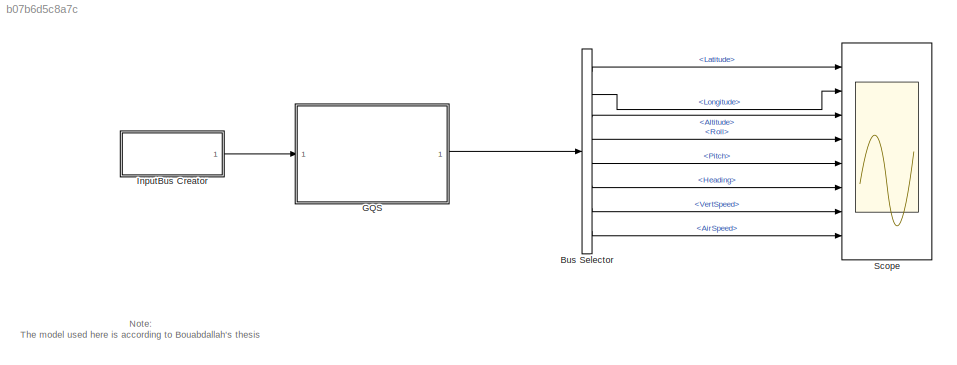
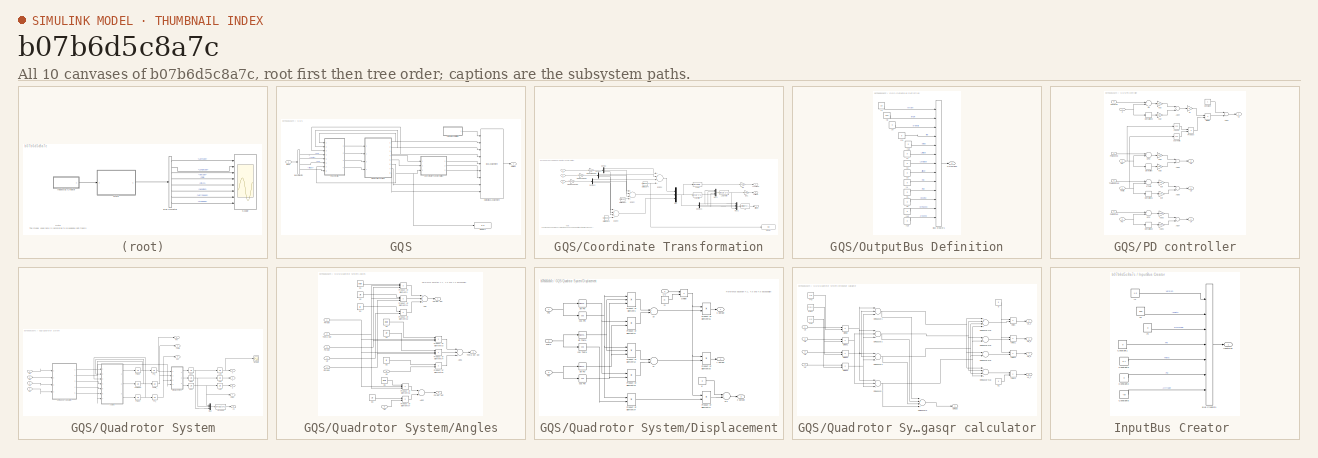
[diagram: thumbnail index - all 10 canvases of the model, root first then tree order]
MODEL slx_b07b6d5c8a7c
KIND model
CONFIG AbsTol = auto
CONFIG EnableMultiTasking = on
CONFIG FixedStep = 0.01
CONFIG MaxStep = auto
CONFIG MinStep = auto
CONFIG RelTol = 1e-3
CONFIG SampleTimeConstraint = Unconstrained
CONFIG Solver = ode4
CONFIG SolverName = ode4
CONFIG StartTime = 0.0
CONFIG StopTime = 50
BLOCK [BusSelector] Bus Selector
  OutputSignals = Latitude,Longitude,Altitude,Roll,Pitch,Heading,VertSpeed,AirSpeed
  Ports = [1, 8]
BLOCK [SubSystem] GQS
  Ports = [1, 1]
  RequestExecContextInheritance = off
  Variant = off
BLOCK [BusSelector] GQS/Bus Selector
  OutputSignals = Phi,Theta,Psi,Altitude
  Ports = [1, 4]
BLOCK [SubSystem] GQS/Coordinate Transformation
  Ports = [3, 3]
  RequestExecContextInheritance = off
  Variant = off
BLOCK [Fcn] GQS/Coordinate Transformation/Alt
  Expr = (sqrt(u[1]^2+u[2]^2)/cos(u[4]))-( a^2 / sqrt( a^2 * cos(u[4])*cos(u[4])+b^2*sin(u[4])*sin(u[4]) ) )
BLOCK [Outport] GQS/Coordinate Transformation/Altitude
  IconDisplay = Port number
  Port = 3
BLOCK [Demux] GQS/Coordinate Transformation/Demux
  DisplayOption = bar
  Outputs = 3
  Ports = [1, 3]
BLOCK [Demux] GQS/Coordinate Transformation/Demux1
  DisplayOption = bar
  Outputs = 3
  Ports = [1, 3]
BLOCK [Demux] GQS/Coordinate Transformation/Demux2
  DisplayOption = bar
  Outputs = 3
  Ports = [1, 3]
BLOCK [Demux] GQS/Coordinate Transformation/Demux3
  DisplayOption = bar
  Outputs = 3
  Ports = [1, 3]
BLOCK [Display] GQS/Coordinate Transformation/Display
  Decimation = 1
  Ports = [1]
BLOCK [Sum] GQS/Coordinate Transformation/ECEFx
  InputSameDT = off
  Inputs = ++++
  OutDataTypeStr = Inherit: Inherit via internal rule
  Ports = [4, 1]
  SaturateOnIntegerOverflow = off
BLOCK [Sum] GQS/Coordinate Transformation/ECEFy
  InputSameDT = off
  Inputs = ++++
  OutDataTypeStr = Inherit: Inherit via internal rule
  Ports = [4, 1]
  SaturateOnIntegerOverflow = off
BLOCK [Sum] GQS/Coordinate Transformation/ECEFz
  InputSameDT = off
  Inputs = ++++
  OutDataTypeStr = Inherit: Inherit via internal rule
  Ports = [4, 1]
  SaturateOnIntegerOverflow = off
BLOCK [Fcn] GQS/Coordinate Transformation/Lat 1st Iter
  Expr = atan2(a^2 * u[3], b^2 * sqrt(u[1]^2 + u[2]^2))
BLOCK [Fcn] GQS/Coordinate Transformation/Lat 2nd Iter
  Expr = atan2(a^2 * sin(u[4])* sin(u[4]),(b^2*sin(u[4])*cos(u[4])+(sqrt(u[1]^2+u[2]^2)*sin(u[4])-u[3]*cos(u[4]))*sqrt(a^2 * cos(u[4])* cos(u[4])+b^2 * sin(u[4])* sin(u[4]))))
BLOCK [Outport] GQS/Coordinate Transformation/Latitude
  IconDisplay = Port number
  Port = 2
BLOCK [Fcn] GQS/Coordinate Transformation/Long
  Expr = atan2(u[2], u[1])
BLOCK [Outport] GQS/Coordinate Transformation/Longitude
  IconDisplay = Port number
BLOCK [Mux] GQS/Coordinate Transformation/Mux
  DisplayOption = bar
  Inputs = 3
  Ports = [3, 1]
BLOCK [Mux] GQS/Coordinate Transformation/Mux1
  DisplayOption = bar
  Ports = [4, 1]
BLOCK [Mux] GQS/Coordinate Transformation/Mux2
  DisplayOption = bar
  Ports = [4, 1]
BLOCK [Gain] GQS/Coordinate Transformation/NEDDownECEF
  Gain = NEDDownECEF
  OutDataTypeStr = Inherit: Inherit via internal rule
  ParamDataTypeStr = Inherit: Inherit via internal rule
  SaturateOnIntegerOverflow = off
BLOCK [Gain] GQS/Coordinate Transformation/NEDEastECEF
  Gain = NEDEastECEF
  OutDataTypeStr = Inherit: Inherit via internal rule
  ParamDataTypeStr = Inherit: Inherit via internal rule
  SaturateOnIntegerOverflow = off
BLOCK [Gain] GQS/Coordinate Transformation/NEDNorthECEF
  Gain = NEDNorthECEF
  OutDataTypeStr = Inherit: Inherit via internal rule
  ParamDataTypeStr = Inherit: Inherit via internal rule
  SaturateOnIntegerOverflow = off
BLOCK [Constant] GQS/Coordinate Transformation/StartECEFX 
  Value = StartECEFX
BLOCK [Constant] GQS/Coordinate Transformation/StartECEFY
  Value = StartECEFY
BLOCK [Constant] GQS/Coordinate Transformation/StartECEFZ
  Value = StartECEFZ
BLOCK [Inport] GQS/Coordinate Transformation/X
  IconDisplay = Port number
BLOCK [Inport] GQS/Coordinate Transformation/Y
  IconDisplay = Port number
  Port = 2
BLOCK [Inport] GQS/Coordinate Transformation/Z
  IconDisplay = Port number
  Port = 3
BLOCK [Gain] GQS/Coordinate Transformation/r2d
  Gain = 180/pi
  OutDataTypeStr = Inherit: Inherit via internal rule
  ParamDataTypeStr = Inherit: Inherit via internal rule
  SaturateOnIntegerOverflow = off
BLOCK [Gain] GQS/Coordinate Transformation/r2d1
  Gain = 180/pi
  OutDataTypeStr = Inherit: Inherit via internal rule
  ParamDataTypeStr = Inherit: Inherit via internal rule
  SaturateOnIntegerOverflow = off
BLOCK [Display] GQS/Display1
  Decimation = 1
  Ports = [1]
BLOCK [Inport] GQS/Input
  IconDisplay = Port number
  OutDataTypeStr = Bus: InputVector
BLOCK [Outport] GQS/Output
  IconDisplay = Port number
  OutDataTypeStr = Bus: OutputVector
BLOCK [BusAssignment] GQS/OutputBus Assignment
  AssignedSignals = Roll,Pitch,Heading,Longitude,Latitude,Altitude,VertSpeed,AirSpeed
  Ports = [9, 1]
BLOCK [SubSystem] GQS/OutputBus Definition
  Ports = [0, 1]
  RequestExecContextInheritance = off
  Variant = off
BLOCK [BusCreator] GQS/OutputBus Definition/Bus Creator1
  DisplayOption = bar
  InheritFromInputs = on
  Inputs = 'version','length','projectId','time','status','Latitude','Longitude','Altitude','Roll','Pitch','Heading','VertSpeed','AirSpeed'
  OutDataTypeStr = Bus: OutputVector
  Ports = [13, 1]
BLOCK [Outport] GQS/OutputBus Definition/OutputBus
  IconDisplay = Port number
  OutDataTypeStr = Bus: OutputVector
BLOCK [Constant] GQS/OutputBus Definition/y1
  OutDataTypeStr = double
  Value = 0
BLOCK [Constant] GQS/OutputBus Definition/y10
  OutDataTypeStr = double
  Value = 0
BLOCK [Constant] GQS/OutputBus Definition/y11
  OutDataTypeStr = double
  Value = 0
BLOCK [Constant] GQS/OutputBus Definition/y12
  OutDataTypeStr = double
  Value = 0
BLOCK [Constant] GQS/OutputBus Definition/y13
  OutDataTypeStr = double
  Value = 0
BLOCK [Constant] GQS/OutputBus Definition/y2
  OutDataTypeStr = double
  Value = 0
BLOCK [Constant] GQS/OutputBus Definition/y3
  OutDataTypeStr = double
  Value = 0
BLOCK [Constant] GQS/OutputBus Definition/y4
  OutDataTypeStr = double
  Value = 0
BLOCK [Constant] GQS/OutputBus Definition/y5
  OutDataTypeStr = double
  Value = 0
BLOCK [Constant] GQS/OutputBus Definition/y6
  OutDataTypeStr = double
  Value = 0
BLOCK [Constant] GQS/OutputBus Definition/y7
  OutDataTypeStr = double
  Value = 1.0
BLOCK [Constant] GQS/OutputBus Definition/y8
  OutDataTypeStr = double
  Value = 555
BLOCK [Constant] GQS/OutputBus Definition/y9
  OutDataTypeStr = double
  Value = 0
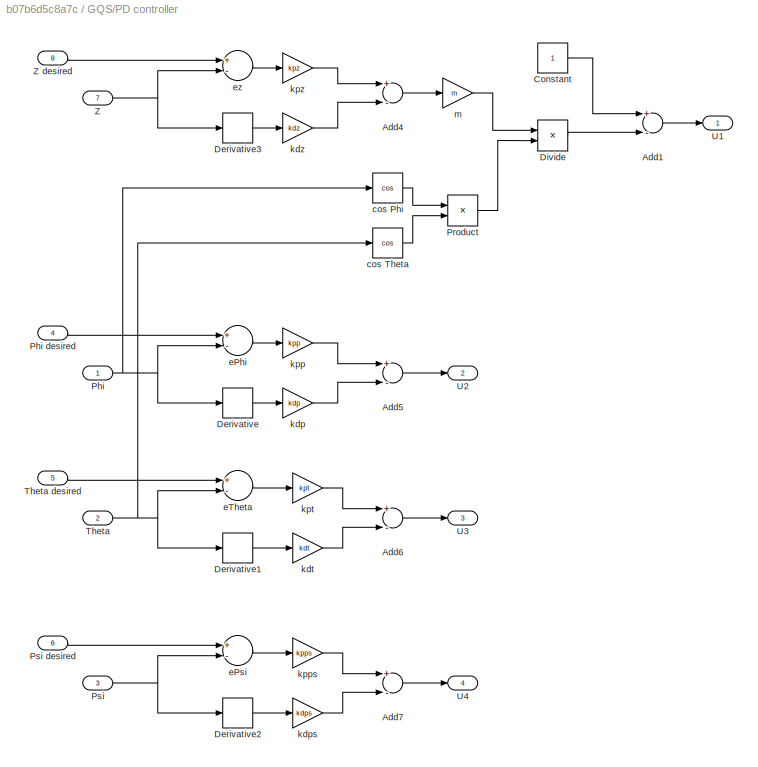
BLOCK [SubSystem] GQS/PD controller
  Ports = [8, 4]
  RequestExecContextInheritance = off
  Variant = off
BLOCK [Sum] GQS/PD controller/Add1
  InputSameDT = off
  Inputs = +-
  OutDataTypeStr = Inherit: Inherit via internal rule
  Ports = [2, 1]
  SaturateOnIntegerOverflow = off
BLOCK [Sum] GQS/PD controller/Add4
  InputSameDT = off
  Inputs = +-
  OutDataTypeStr = Inherit: Inherit via internal rule
  Ports = [2, 1]
  SaturateOnIntegerOverflow = off
BLOCK [Sum] GQS/PD controller/Add5
  InputSameDT = off
  Inputs = +-
  OutDataTypeStr = Inherit: Inherit via internal rule
  Ports = [2, 1]
  SaturateOnIntegerOverflow = off
BLOCK [Sum] GQS/PD controller/Add6
  InputSameDT = off
  Inputs = +-
  OutDataTypeStr = Inherit: Inherit via internal rule
  Ports = [2, 1]
  SaturateOnIntegerOverflow = off
BLOCK [Sum] GQS/PD controller/Add7
  InputSameDT = off
  Inputs = +-
  OutDataTypeStr = Inherit: Inherit via internal rule
  Ports = [2, 1]
  SaturateOnIntegerOverflow = off
BLOCK [Constant] GQS/PD controller/Constant
BLOCK [Derivative] GQS/PD controller/Derivative
BLOCK [Derivative] GQS/PD controller/Derivative1
BLOCK [Derivative] GQS/PD controller/Derivative2
BLOCK [Derivative] GQS/PD controller/Derivative3
BLOCK [Product] GQS/PD controller/Divide
  InputSameDT = off
  Inputs = */
  OutDataTypeStr = Inherit: Inherit via internal rule
  Ports = [2, 1]
  RndMeth = Floor
  SaturateOnIntegerOverflow = off
BLOCK [Inport] GQS/PD controller/Phi
  IconDisplay = Port number
BLOCK [Inport] GQS/PD controller/Phi desired
  IconDisplay = Port number
  Port = 4
BLOCK [Product] GQS/PD controller/Product
  InputSameDT = off
  OutDataTypeStr = Inherit: Inherit via internal rule
  Ports = [2, 1]
  SaturateOnIntegerOverflow = off
BLOCK [Inport] GQS/PD controller/Psi
  IconDisplay = Port number
  Port = 3
BLOCK [Inport] GQS/PD controller/Psi desired
  IconDisplay = Port number
  Port = 6
BLOCK [Inport] GQS/PD controller/Theta
  IconDisplay = Port number
  Port = 2
BLOCK [Inport] GQS/PD controller/Theta desired
  IconDisplay = Port number
  Port = 5
BLOCK [Outport] GQS/PD controller/U1
  IconDisplay = Port number
BLOCK [Outport] GQS/PD controller/U2
  IconDisplay = Port number
  Port = 2
BLOCK [Outport] GQS/PD controller/U3
  IconDisplay = Port number
  Port = 3
BLOCK [Outport] GQS/PD controller/U4
  IconDisplay = Port number
  Port = 4
BLOCK [Inport] GQS/PD controller/Z
  IconDisplay = Port number
  Port = 7
BLOCK [Inport] GQS/PD controller/Z desired
  IconDisplay = Port number
  Port = 8
BLOCK [Trigonometry] GQS/PD controller/cos Phi
  Operator = cos
  Ports = [1, 1]
BLOCK [Trigonometry] GQS/PD controller/cos Theta
  Operator = cos
  Ports = [1, 1]
BLOCK [Sum] GQS/PD controller/ePhi
  InputSameDT = off
  Inputs = +-
  OutDataTypeStr = Inherit: Inherit via internal rule
  Ports = [2, 1]
  SaturateOnIntegerOverflow = off
BLOCK [Sum] GQS/PD controller/ePsi
  InputSameDT = off
  Inputs = +-
  OutDataTypeStr = Inherit: Inherit via internal rule
  Ports = [2, 1]
  SaturateOnIntegerOverflow = off
BLOCK [Sum] GQS/PD controller/eTheta
  InputSameDT = off
  Inputs = +-
  OutDataTypeStr = Inherit: Inherit via internal rule
  Ports = [2, 1]
  SaturateOnIntegerOverflow = off
BLOCK [Sum] GQS/PD controller/ez
  InputSameDT = off
  Inputs = +-
  OutDataTypeStr = Inherit: Inherit via internal rule
  Ports = [2, 1]
  SaturateOnIntegerOverflow = off
BLOCK [Gain] GQS/PD controller/kdp
  Gain = kdp
  OutDataTypeStr = Inherit: Inherit via internal rule
  ParamDataTypeStr = Inherit: Inherit via internal rule
  SaturateOnIntegerOverflow = off
BLOCK [Gain] GQS/PD controller/kdps
  Gain = kdps
  OutDataTypeStr = Inherit: Inherit via internal rule
  ParamDataTypeStr = Inherit: Inherit via internal rule
  SaturateOnIntegerOverflow = off
BLOCK [Gain] GQS/PD controller/kdt
  Gain = kdt
  OutDataTypeStr = Inherit: Inherit via internal rule
  ParamDataTypeStr = Inherit: Inherit via internal rule
  SaturateOnIntegerOverflow = off
BLOCK [Gain] GQS/PD controller/kdz
  Gain = kdz
  OutDataTypeStr = Inherit: Inherit via internal rule
  ParamDataTypeStr = Inherit: Inherit via internal rule
  SaturateOnIntegerOverflow = off
BLOCK [Gain] GQS/PD controller/kpp
  Gain = kpp
  OutDataTypeStr = Inherit: Inherit via internal rule
  ParamDataTypeStr = Inherit: Inherit via internal rule
  SaturateOnIntegerOverflow = off
BLOCK [Gain] GQS/PD controller/kpps
  Gain = kpps
  OutDataTypeStr = Inherit: Inherit via internal rule
  ParamDataTypeStr = Inherit: Inherit via internal rule
  SaturateOnIntegerOverflow = off
BLOCK [Gain] GQS/PD controller/kpt
  Gain = kpt
  OutDataTypeStr = Inherit: Inherit via internal rule
  ParamDataTypeStr = Inherit: Inherit via internal rule
  SaturateOnIntegerOverflow = off
BLOCK [Gain] GQS/PD controller/kpz
  Gain = kpz
  OutDataTypeStr = Inherit: Inherit via internal rule
  ParamDataTypeStr = Inherit: Inherit via internal rule
  SaturateOnIntegerOverflow = off
BLOCK [Gain] GQS/PD controller/m
  Gain = m
  OutDataTypeStr = Inherit: Inherit via internal rule
  ParamDataTypeStr = Inherit: Inherit via internal rule
  SaturateOnIntegerOverflow = off
BLOCK [SubSystem] GQS/Quadrotor System
  Ports = [4, 8]
  RequestExecContextInheritance = off
  Variant = off
BLOCK [Outport] GQS/Quadrotor System/AS
  IconDisplay = Port number
  Port = 8
BLOCK [Integrator] GQS/Quadrotor System/Act X
  Ports = [1, 1]
BLOCK [Integrator] GQS/Quadrotor System/Act Y
  Ports = [1, 1]
BLOCK [Integrator] GQS/Quadrotor System/Act Z
  Ports = [1, 1]
BLOCK [Fcn] GQS/Quadrotor System/Airspeed
  Expr = sqrt(u[1]^2+u[2]^2+u[3]^2)
BLOCK [SubSystem] GQS/Quadrotor System/Angles
  Ports = [7, 3]
  RequestExecContextInheritance = off
  Variant = off
BLOCK [Sum] GQS/Quadrotor System/Angles/Add
  InputSameDT = off
  Inputs = +++
  OutDataTypeStr = Inherit: Inherit via internal rule
  Ports = [3, 1]
  SaturateOnIntegerOverflow = off
BLOCK [Sum] GQS/Quadrotor System/Angles/Add1
  InputSameDT = off
  Inputs = +-+
  OutDataTypeStr = Inherit: Inherit via internal rule
  Ports = [3, 1]
  SaturateOnIntegerOverflow = off
BLOCK [Sum] GQS/Quadrotor System/Angles/Add2
  InputSameDT = off
  OutDataTypeStr = Inherit: Inherit via internal rule
  Ports = [2, 1]
  SaturateOnIntegerOverflow = off
BLOCK [Inport] GQS/Quadrotor System/Angles/Omega
  IconDisplay = Port number
  Port = 7
BLOCK [Inport] GQS/Quadrotor System/Angles/Phi dot
  IconDisplay = Port number
BLOCK [Outport] GQS/Quadrotor System/Angles/Phi dot dot
  IconDisplay = Port number
BLOCK [Product] GQS/Quadrotor System/Angles/Product of Elements
  InputSameDT = off
  Inputs = 3
  OutDataTypeStr = Inherit: Inherit via internal rule
  Ports = [3, 1]
  RndMeth = Floor
  SaturateOnIntegerOverflow = off
BLOCK [Product] GQS/Quadrotor System/Angles/Product of Elements1
  InputSameDT = off
  Inputs = 3
  OutDataTypeStr = Inherit: Inherit via internal rule
  Ports = [3, 1]
  RndMeth = Floor
  SaturateOnIntegerOverflow = off
BLOCK [Product] GQS/Quadrotor System/Angles/Product of Elements2
  InputSameDT = off
  OutDataTypeStr = Inherit: Inherit via internal rule
  Ports = [2, 1]
  RndMeth = Floor
  SaturateOnIntegerOverflow = off
BLOCK [Product] GQS/Quadrotor System/Angles/Product of Elements3
  InputSameDT = off
  Inputs = 3
  OutDataTypeStr = Inherit: Inherit via internal rule
  Ports = [3, 1]
  RndMeth = Floor
  SaturateOnIntegerOverflow = off
BLOCK [Product] GQS/Quadrotor System/Angles/Product of Elements4
  InputSameDT = off
  Inputs = 3
  OutDataTypeStr = Inherit: Inherit via internal rule
  Ports = [3, 1]
  RndMeth = Floor
  SaturateOnIntegerOverflow = off
BLOCK [Product] GQS/Quadrotor System/Angles/Product of Elements5
  InputSameDT = off
  OutDataTypeStr = Inherit: Inherit via internal rule
  Ports = [2, 1]
  RndMeth = Floor
  SaturateOnIntegerOverflow = off
BLOCK [Product] GQS/Quadrotor System/Angles/Product of Elements6
  InputSameDT = off
  Inputs = 3
  OutDataTypeStr = Inherit: Inherit via internal rule
  Ports = [3, 1]
  RndMeth = Floor
  SaturateOnIntegerOverflow = off
BLOCK [Product] GQS/Quadrotor System/Angles/Product of Elements7
  InputSameDT = off
  OutDataTypeStr = Inherit: Inherit via internal rule
  Ports = [2, 1]
  RndMeth = Floor
  SaturateOnIntegerOverflow = off
BLOCK [Inport] GQS/Quadrotor System/Angles/Psi dot
  IconDisplay = Port number
  Port = 3
BLOCK [Outport] GQS/Quadrotor System/Angles/Psi dot dot
  IconDisplay = Port number
  Port = 3
BLOCK [Inport] GQS/Quadrotor System/Angles/Theta dot
  IconDisplay = Port number
  Port = 2
BLOCK [Outport] GQS/Quadrotor System/Angles/Theta dot dot
  IconDisplay = Port number
  Port = 2
BLOCK [Inport] GQS/Quadrotor System/Angles/U2
  IconDisplay = Port number
  Port = 4
BLOCK [Inport] GQS/Quadrotor System/Angles/U3
  IconDisplay = Port number
  Port = 5
BLOCK [Inport] GQS/Quadrotor System/Angles/U4
  IconDisplay = Port number
  Port = 6
BLOCK [Constant] GQS/Quadrotor System/Angles/a1
  Value = (Iy - Iz)/Ix
BLOCK [Constant] GQS/Quadrotor System/Angles/a2
  Value = Jr/Ix
BLOCK [Constant] GQS/Quadrotor System/Angles/a3
  Value = (Iz - Ix)/Iy
BLOCK [Constant] GQS/Quadrotor System/Angles/a4
  Value = Jr/Iy
BLOCK [Constant] GQS/Quadrotor System/Angles/a5
  Value = (Ix - Iy)/Iz
BLOCK [Constant] GQS/Quadrotor System/Angles/b1
  Value = l/Ix
BLOCK [Constant] GQS/Quadrotor System/Angles/b2
  Value = l/Iy
BLOCK [Constant] GQS/Quadrotor System/Angles/b3
  Value = 1/Iz
BLOCK [SubSystem] GQS/Quadrotor System/Displacement
  Ports = [4, 3]
  RequestExecContextInheritance = off
  Variant = off
BLOCK [Product] GQS/Quadrotor System/Displacement/Divide
  InputSameDT = off
  Inputs = */
  OutDataTypeStr = Inherit: Inherit via internal rule
  Ports = [2, 1]
  RndMeth = Floor
  SaturateOnIntegerOverflow = off
BLOCK [Inport] GQS/Quadrotor System/Displacement/Phi
  IconDisplay = Port number
BLOCK [Product] GQS/Quadrotor System/Displacement/Product of Elements
  InputSameDT = off
  Inputs = 3
  OutDataTypeStr = Inherit: Inherit via internal rule
  Ports = [3, 1]
  RndMeth = Floor
  SaturateOnIntegerOverflow = off
BLOCK [Product] GQS/Quadrotor System/Displacement/Product of Elements1
  InputSameDT = off
  OutDataTypeStr = Inherit: Inherit via internal rule
  Ports = [2, 1]
  RndMeth = Floor
  SaturateOnIntegerOverflow = off
BLOCK [Product] GQS/Quadrotor System/Displacement/Product of Elements2
  InputSameDT = off
  Inputs = 3
  OutDataTypeStr = Inherit: Inherit via internal rule
  Ports = [3, 1]
  RndMeth = Floor
  SaturateOnIntegerOverflow = off
BLOCK [Product] GQS/Quadrotor System/Displacement/Product of Elements3
  InputSameDT = off
  OutDataTypeStr = Inherit: Inherit via internal rule
  Ports = [2, 1]
  RndMeth = Floor
  SaturateOnIntegerOverflow = off
BLOCK [Product] GQS/Quadrotor System/Displacement/Product of Elements4
  InputSameDT = off
  OutDataTypeStr = Inherit: Inherit via internal rule
  Ports = [2, 1]
  RndMeth = Floor
  SaturateOnIntegerOverflow = off
BLOCK [Product] GQS/Quadrotor System/Displacement/Product of Elements5
  InputSameDT = off
  OutDataTypeStr = Inherit: Inherit via internal rule
  Ports = [2, 1]
  RndMeth = Floor
  SaturateOnIntegerOverflow = off
BLOCK [Product] GQS/Quadrotor System/Displacement/Product of Elements6
  InputSameDT = off
  OutDataTypeStr = Inherit: Inherit via internal rule
  Ports = [2, 1]
  RndMeth = Floor
  SaturateOnIntegerOverflow = off
BLOCK [Product] GQS/Quadrotor System/Displacement/Product of Elements7
  InputSameDT = off
  OutDataTypeStr = Inherit: Inherit via internal rule
  Ports = [2, 1]
  RndMeth = Floor
  SaturateOnIntegerOverflow = off
BLOCK [Inport] GQS/Quadrotor System/Displacement/Psi
  IconDisplay = Port number
  Port = 3
BLOCK [Inport] GQS/Quadrotor System/Displacement/Theta
  IconDisplay = Port number
  Port = 2
BLOCK [Inport] GQS/Quadrotor System/Displacement/U1
  IconDisplay = Port number
  Port = 4
BLOCK [Trigonometry] GQS/Quadrotor System/Displacement/cos Phi
  Operator = cos
  Ports = [1, 1]
BLOCK [Trigonometry] GQS/Quadrotor System/Displacement/cos Psi
  Operator = cos
  Ports = [1, 1]
BLOCK [Trigonometry] GQS/Quadrotor System/Displacement/cos Theta
  Operator = cos
  Ports = [1, 1]
BLOCK [Constant] GQS/Quadrotor System/Displacement/g
  Value = g
BLOCK [Constant] GQS/Quadrotor System/Displacement/m
  Value = m
BLOCK [Trigonometry] GQS/Quadrotor System/Displacement/sin Phi
  Ports = [1, 1]
BLOCK [Trigonometry] GQS/Quadrotor System/Displacement/sin Psi
  Ports = [1, 1]
BLOCK [Trigonometry] GQS/Quadrotor System/Displacement/sin Theta
  Ports = [1, 1]
BLOCK [Sum] GQS/Quadrotor System/Displacement/ux
  InputSameDT = off
  OutDataTypeStr = Inherit: Inherit via internal rule
  Ports = [2, 1]
  SaturateOnIntegerOverflow = off
BLOCK [Sum] GQS/Quadrotor System/Displacement/uy
  InputSameDT = off
  Inputs = +-
  OutDataTypeStr = Inherit: Inherit via internal rule
  Ports = [2, 1]
  SaturateOnIntegerOverflow = off
BLOCK [Sum] GQS/Quadrotor System/Displacement/uy1
  InputSameDT = off
  Inputs = +-
  OutDataTypeStr = Inherit: Inherit via internal rule
  Ports = [2, 1]
  SaturateOnIntegerOverflow = off
BLOCK [Outport] GQS/Quadrotor System/Displacement/x dotdot
  IconDisplay = Port number
BLOCK [Outport] GQS/Quadrotor System/Displacement/y dotdot
  IconDisplay = Port number
  Port = 2
BLOCK [Outport] GQS/Quadrotor System/Displacement/z dotdot
  IconDisplay = Port number
  Port = 3
BLOCK [Mux] GQS/Quadrotor System/Mux
  DisplayOption = bar
  Inputs = 3
  Ports = [3, 1]
BLOCK [Outport] GQS/Quadrotor System/Phi
  IconDisplay = Port number
BLOCK [Integrator] GQS/Quadrotor System/Phi dot
  Ports = [1, 1]
BLOCK [Integrator] GQS/Quadrotor System/Phi_ 
  Ports = [1, 1]
  ZeroCross = off
BLOCK [Outport] GQS/Quadrotor System/Psi
  IconDisplay = Port number
  Port = 3
BLOCK [Integrator] GQS/Quadrotor System/Psi dot
  Ports = [1, 1]
  ZeroCross = off
BLOCK [Integrator] GQS/Quadrotor System/Psi_
  Ports = [1, 1]
  ZeroCross = off
BLOCK [Scope] GQS/Quadrotor System/Scope
  NumInputPorts = 1
  Ports = [1]
  ScopeSpecificationString = C++SS(StrPVP('Location','[1, 48, 1921, 1169]'),StrPVP('Open','off'),MxPVP('AxesTitles',24,'struct(''axes1'',''%<SignalLabel>'')'),MxPVP('ScopeGraphics',28,'struct(''FigureColor'',''[0.5 0.5 0.5]'',''AxesColor'',''[0 0 0]'',''AxesTickColor'',''[1 1 1]'',''LineColors'',''[1 1 0;1 0 1;0 1 1;1 0 0;0 1 0;0 0 1]'',''LineStyles'',''-|-|-|-|-|-'',''LineWidths'',''[0.5 0.5 0.5 0.5 0.5 0.5]'',''MarkerStyles...<+270ch>
BLOCK [Outport] GQS/Quadrotor System/Theta
  IconDisplay = Port number
  Port = 2
BLOCK [Integrator] GQS/Quadrotor System/Theta dot
  Ports = [1, 1]
  ZeroCross = off
BLOCK [Integrator] GQS/Quadrotor System/Theta_
  Ports = [1, 1]
  ZeroCross = off
BLOCK [Inport] GQS/Quadrotor System/U1
  IconDisplay = Port number
BLOCK [Inport] GQS/Quadrotor System/U2
  IconDisplay = Port number
  Port = 2
BLOCK [Inport] GQS/Quadrotor System/U3
  IconDisplay = Port number
  Port = 3
BLOCK [Inport] GQS/Quadrotor System/U4
  IconDisplay = Port number
  Port = 4
BLOCK [Outport] GQS/Quadrotor System/X
  IconDisplay = Port number
  Port = 4
BLOCK [Integrator] GQS/Quadrotor System/X dot
  Ports = [1, 1]
BLOCK [Outport] GQS/Quadrotor System/Y
  IconDisplay = Port number
  Port = 5
BLOCK [Integrator] GQS/Quadrotor System/Y dot
  Ports = [1, 1]
BLOCK [Outport] GQS/Quadrotor System/Z
  IconDisplay = Port number
  Port = 6
BLOCK [Integrator] GQS/Quadrotor System/Z dot
  Ports = [1, 1]
BLOCK [Outport] GQS/Quadrotor System/ZDot
  IconDisplay = Port number
  Port = 7
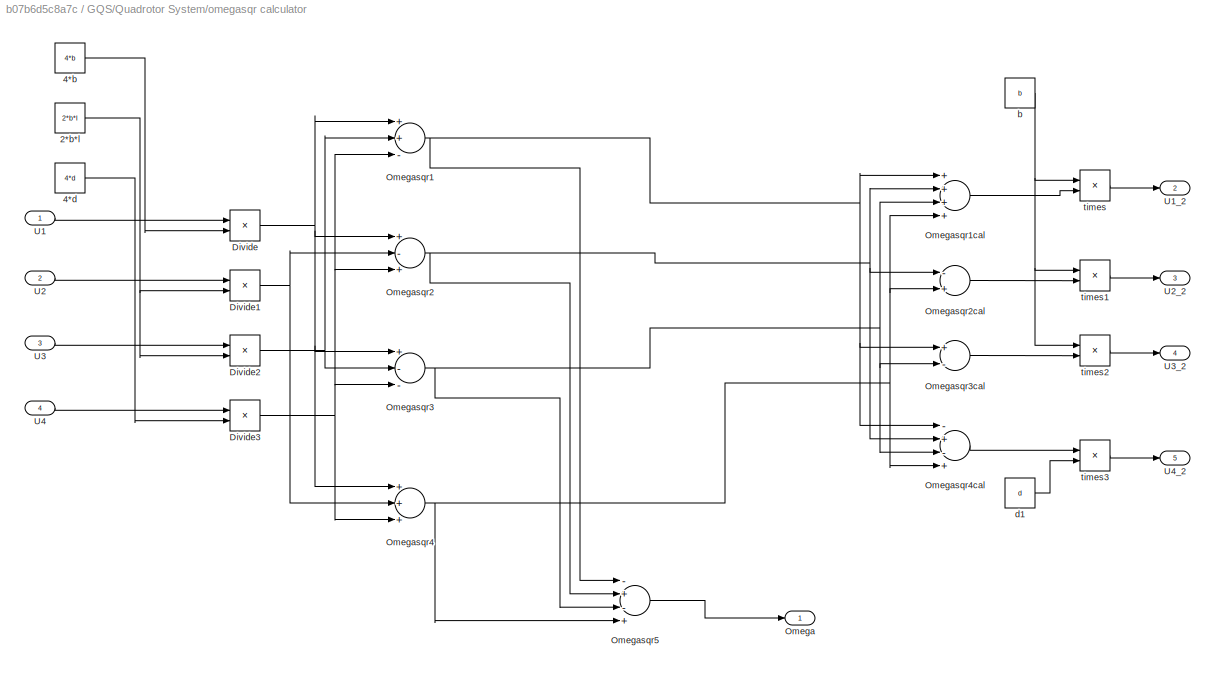
BLOCK [SubSystem] GQS/Quadrotor System/omegasqr calculator
  Ports = [4, 5]
  RequestExecContextInheritance = off
  Variant = off
BLOCK [Constant] GQS/Quadrotor System/omegasqr calculator/2*b*l
  Value = 2*b*l
BLOCK [Constant] GQS/Quadrotor System/omegasqr calculator/4*b
  Value = 4*b
BLOCK [Constant] GQS/Quadrotor System/omegasqr calculator/4*d
  Value = 4*d
BLOCK [Product] GQS/Quadrotor System/omegasqr calculator/Divide
  InputSameDT = off
  Inputs = */
  OutDataTypeStr = Inherit: Inherit via internal rule
  Ports = [2, 1]
  RndMeth = Floor
  SaturateOnIntegerOverflow = off
BLOCK [Product] GQS/Quadrotor System/omegasqr calculator/Divide1
  InputSameDT = off
  Inputs = */
  OutDataTypeStr = Inherit: Inherit via internal rule
  Ports = [2, 1]
  RndMeth = Floor
  SaturateOnIntegerOverflow = off
BLOCK [Product] GQS/Quadrotor System/omegasqr calculator/Divide2
  InputSameDT = off
  Inputs = */
  OutDataTypeStr = Inherit: Inherit via internal rule
  Ports = [2, 1]
  RndMeth = Floor
  SaturateOnIntegerOverflow = off
BLOCK [Product] GQS/Quadrotor System/omegasqr calculator/Divide3
  InputSameDT = off
  Inputs = */
  OutDataTypeStr = Inherit: Inherit via internal rule
  Ports = [2, 1]
  RndMeth = Floor
  SaturateOnIntegerOverflow = off
BLOCK [Outport] GQS/Quadrotor System/omegasqr calculator/Omega
  IconDisplay = Port number
BLOCK [Sum] GQS/Quadrotor System/omegasqr calculator/Omegasqr1
  InputSameDT = off
  Inputs = ++-
  OutDataTypeStr = Inherit: Inherit via internal rule
  Ports = [3, 1]
  SaturateOnIntegerOverflow = off
BLOCK [Sum] GQS/Quadrotor System/omegasqr calculator/Omegasqr1cal
  InputSameDT = off
  Inputs = ++++
  OutDataTypeStr = Inherit: Inherit via internal rule
  Ports = [4, 1]
  SaturateOnIntegerOverflow = off
BLOCK [Sum] GQS/Quadrotor System/omegasqr calculator/Omegasqr2
  InputSameDT = off
  Inputs = +-+
  OutDataTypeStr = Inherit: Inherit via internal rule
  Ports = [3, 1]
  SaturateOnIntegerOverflow = off
BLOCK [Sum] GQS/Quadrotor System/omegasqr calculator/Omegasqr2cal
  InputSameDT = off
  Inputs = -+
  OutDataTypeStr = Inherit: Inherit via internal rule
  Ports = [2, 1]
  SaturateOnIntegerOverflow = off
BLOCK [Sum] GQS/Quadrotor System/omegasqr calculator/Omegasqr3
  InputSameDT = off
  Inputs = +--
  OutDataTypeStr = Inherit: Inherit via internal rule
  Ports = [3, 1]
  SaturateOnIntegerOverflow = off
BLOCK [Sum] GQS/Quadrotor System/omegasqr calculator/Omegasqr3cal
  InputSameDT = off
  Inputs = +-
  OutDataTypeStr = Inherit: Inherit via internal rule
  Ports = [2, 1]
  SaturateOnIntegerOverflow = off
BLOCK [Sum] GQS/Quadrotor System/omegasqr calculator/Omegasqr4
  InputSameDT = off
  Inputs = +++
  OutDataTypeStr = Inherit: Inherit via internal rule
  Ports = [3, 1]
  SaturateOnIntegerOverflow = off
BLOCK [Sum] GQS/Quadrotor System/omegasqr calculator/Omegasqr4cal
  InputSameDT = off
  Inputs = -+-+
  OutDataTypeStr = Inherit: Inherit via internal rule
  Ports = [4, 1]
  SaturateOnIntegerOverflow = off
BLOCK [Sum] GQS/Quadrotor System/omegasqr calculator/Omegasqr5
  InputSameDT = off
  Inputs = -+-+
  OutDataTypeStr = Inherit: Inherit via internal rule
  Ports = [4, 1]
  SaturateOnIntegerOverflow = off
BLOCK [Inport] GQS/Quadrotor System/omegasqr calculator/U1
  IconDisplay = Port number
BLOCK [Outport] GQS/Quadrotor System/omegasqr calculator/U1_2
  IconDisplay = Port number
  Port = 2
BLOCK [Inport] GQS/Quadrotor System/omegasqr calculator/U2
  IconDisplay = Port number
  Port = 2
BLOCK [Outport] GQS/Quadrotor System/omegasqr calculator/U2_2
  IconDisplay = Port number
  Port = 3
BLOCK [Inport] GQS/Quadrotor System/omegasqr calculator/U3
  IconDisplay = Port number
  Port = 3
BLOCK [Outport] GQS/Quadrotor System/omegasqr calculator/U3_2
  IconDisplay = Port number
  Port = 4
BLOCK [Inport] GQS/Quadrotor System/omegasqr calculator/U4
  IconDisplay = Port number
  Port = 4
BLOCK [Outport] GQS/Quadrotor System/omegasqr calculator/U4_2
  IconDisplay = Port number
  Port = 5
BLOCK [Constant] GQS/Quadrotor System/omegasqr calculator/b
  Value = b
BLOCK [Constant] GQS/Quadrotor System/omegasqr calculator/d1
  Value = d
BLOCK [Product] GQS/Quadrotor System/omegasqr calculator/times
  InputSameDT = off
  Inputs = **
  OutDataTypeStr = Inherit: Inherit via internal rule
  Ports = [2, 1]
  RndMeth = Floor
  SaturateOnIntegerOverflow = off
BLOCK [Product] GQS/Quadrotor System/omegasqr calculator/times1
  InputSameDT = off
  Inputs = **
  OutDataTypeStr = Inherit: Inherit via internal rule
  Ports = [2, 1]
  RndMeth = Floor
  SaturateOnIntegerOverflow = off
BLOCK [Product] GQS/Quadrotor System/omegasqr calculator/times2
  InputSameDT = off
  Inputs = **
  OutDataTypeStr = Inherit: Inherit via internal rule
  Ports = [2, 1]
  RndMeth = Floor
  SaturateOnIntegerOverflow = off
BLOCK [Product] GQS/Quadrotor System/omegasqr calculator/times3
  InputSameDT = off
  Inputs = **
  OutDataTypeStr = Inherit: Inherit via internal rule
  Ports = [2, 1]
  RndMeth = Floor
  SaturateOnIntegerOverflow = off
BLOCK [SubSystem] InputBus Creator 
  Ports = [0, 1]
  RequestExecContextInheritance = off
  Variant = off
BLOCK [BusCreator] InputBus Creator /Bus Creator1
  DisplayOption = bar
  InheritFromInputs = on
  Inputs = 'version','length','simMode','Phi','Theta','Psi','Altitude'
  OutDataTypeStr = Bus: InputVector
  Ports = [7, 1]
BLOCK [Constant] InputBus Creator /Constant1
  Value = 0
BLOCK [Constant] InputBus Creator /Constant2
  Value = 0
BLOCK [Constant] InputBus Creator /Constant3
  Value = 0.1
BLOCK [Constant] InputBus Creator /Constant5
  Value = -50
BLOCK [Outport] InputBus Creator /InputBus
  IconDisplay = Port number
  OutDataTypeStr = Bus: InputVector
BLOCK [Constant] InputBus Creator /y7
  OutDataTypeStr = double
  Value = 1.0
BLOCK [Constant] InputBus Creator /y8
  OutDataTypeStr = double
  Value = 555
BLOCK [Constant] InputBus Creator /y9
  OutDataTypeStr = double
  Value = 0
BLOCK [Scope] Scope
  NumInputPorts = 8
  Ports = [8]
  ScopeSpecificationString = C++SS(StrPVP('Location','[2487, 307, 3031, 1367]'),StrPVP('Open','off'),MxPVP('AxesTitles',24,'struct(''axes1'',''%<SignalLabel>'',''axes2'',''%<SignalLabel>'',''axes3'',''%<SignalLabel>'',''axes4'',''%<SignalLabel>'',''axes5'',''%<SignalLabel>'',''axes6'',''%<SignalLabel>'',''axes7'',''%<SignalLabel>'',''axes8'',''%<SignalLabel>'')'),MxPVP('ScopeGraphics',28,'struct(''FigureColor'',''[0.5 0.5 0.5...<+546ch>
ANNOTATION (root): Note: The model used here is according to Bouabdallah's thesis
ANNOTATION GQS/Coordinate Transformation: Note: The model used here is according to Don Koks' Using Rotations to Build Aerospace Coordinate Systems
ANNOTATION GQS/Quadrotor System/Angles: Reference Equation 4.1, 4.5 and 4.6 Bouabdallah
ANNOTATION GQS/Quadrotor System/Displacement: Reference Equation 4.1, 4.5 and 4.6 Bouabdallah
LINE Bus Selector:1 -> Scope:1
LINE Bus Selector:2 -> Scope:2
LINE Bus Selector:3 -> Scope:3
LINE Bus Selector:4 -> Scope:4
LINE Bus Selector:5 -> Scope:5
LINE Bus Selector:6 -> Scope:6
LINE Bus Selector:7 -> Scope:7
LINE Bus Selector:8 -> Scope:8
LINE GQS/Bus Selector:1 -> GQS/PD controller:4
LINE GQS/Bus Selector:2 -> GQS/PD controller:5
LINE GQS/Bus Selector:3 -> GQS/PD controller:6
LINE GQS/Bus Selector:4 -> GQS/PD controller:8
LINE GQS/Coordinate Transformation/Alt:1 -> GQS/Coordinate Transformation/Altitude:1
LINE GQS/Coordinate Transformation/Demux1:1 -> GQS/Coordinate Transformation/ECEFx:2
LINE GQS/Coordinate Transformation/Demux1:2 -> GQS/Coordinate Transformation/ECEFy:3
LINE GQS/Coordinate Transformation/Demux1:3 -> GQS/Coordinate Transformation/ECEFz:2
LINE GQS/Coordinate Transformation/Demux2:1 -> GQS/Coordinate Transformation/ECEFx:3
LINE GQS/Coordinate Transformation/Demux2:2 -> GQS/Coordinate Transformation/ECEFy:2
LINE GQS/Coordinate Transformation/Demux2:3 -> GQS/Coordinate Transformation/ECEFz:3
NET GQS/Coordinate Transformation/Demux3:1 -> GQS/Coordinate Transformation/Mux1:1, GQS/Coordinate Transformation/Mux2:1
NET GQS/Coordinate Transformation/Demux3:2 -> GQS/Coordinate Transformation/Mux1:2, GQS/Coordinate Transformation/Mux2:2
NET GQS/Coordinate Transformation/Demux3:3 -> GQS/Coordinate Transformation/Mux1:3, GQS/Coordinate Transformation/Mux2:3
LINE GQS/Coordinate Transformation/Demux:1 -> GQS/Coordinate Transformation/ECEFx:1
LINE GQS/Coordinate Transformation/Demux:2 -> GQS/Coordinate Transformation/ECEFy:1
LINE GQS/Coordinate Transformation/Demux:3 -> GQS/Coordinate Transformation/ECEFz:1
LINE GQS/Coordinate Transformation/ECEFx:1 -> GQS/Coordinate Transformation/Mux:1
LINE GQS/Coordinate Transformation/ECEFy:1 -> GQS/Coordinate Transformation/Mux:2
LINE GQS/Coordinate Transformation/ECEFz:1 -> GQS/Coordinate Transformation/Mux:3
LINE GQS/Coordinate Transformation/Lat 1st Iter:1 -> GQS/Coordinate Transformation/Mux1:4
NET GQS/Coordinate Transformation/Lat 2nd Iter:1 -> GQS/Coordinate Transformation/Mux2:4, GQS/Coordinate Transformation/r2d1:1
LINE GQS/Coordinate Transformation/Long:1 -> GQS/Coordinate Transformation/r2d:1
LINE GQS/Coordinate Transformation/Mux1:1 -> GQS/Coordinate Transformation/Lat 2nd Iter:1
LINE GQS/Coordinate Transformation/Mux2:1 -> GQS/Coordinate Transformation/Alt:1
NET GQS/Coordinate Transformation/Mux:1 -> GQS/Coordinate Transformation/Demux3:1, GQS/Coordinate Transformation/Lat 1st Iter:1, GQS/Coordinate Transformation/Long:1
LINE GQS/Coordinate Transformation/NEDDownECEF:1 -> GQS/Coordinate Transformation/Demux2:1
LINE GQS/Coordinate Transformation/NEDEastECEF:1 -> GQS/Coordinate Transformation/Demux1:1
LINE GQS/Coordinate Transformation/NEDNorthECEF:1 -> GQS/Coordinate Transformation/Demux:1
NET GQS/Coordinate Transformation/StartECEFX :1 -> GQS/Coordinate Transformation/Display:1, GQS/Coordinate Transformation/ECEFx:4
LINE GQS/Coordinate Transformation/StartECEFY:1 -> GQS/Coordinate Transformation/ECEFy:4
LINE GQS/Coordinate Transformation/StartECEFZ:1 -> GQS/Coordinate Transformation/ECEFz:4
LINE GQS/Coordinate Transformation/X:1 -> GQS/Coordinate Transformation/NEDNorthECEF:1
LINE GQS/Coordinate Transformation/Y:1 -> GQS/Coordinate Transformation/NEDEastECEF:1
LINE GQS/Coordinate Transformation/Z:1 -> GQS/Coordinate Transformation/NEDDownECEF:1
LINE GQS/Coordinate Transformation/r2d1:1 -> GQS/Coordinate Transformation/Latitude:1
LINE GQS/Coordinate Transformation/r2d:1 -> GQS/Coordinate Transformation/Longitude:1
LINE GQS/Coordinate Transformation:1 -> GQS/OutputBus Assignment:5
LINE GQS/Coordinate Transformation:2 -> GQS/OutputBus Assignment:6
LINE GQS/Coordinate Transformation:3 -> GQS/OutputBus Assignment:7
LINE GQS/Input:1 -> GQS/Bus Selector:1
LINE GQS/OutputBus Assignment:1 -> GQS/Output:1
LINE GQS/OutputBus Definition/Bus Creator1:1 -> GQS/OutputBus Definition/OutputBus:1
LINE GQS/OutputBus Definition/y10:1 -> GQS/OutputBus Definition/Bus Creator1:5
LINE GQS/OutputBus Definition/y11:1 -> GQS/OutputBus Definition/Bus Creator1:4
LINE GQS/OutputBus Definition/y12:1 -> GQS/OutputBus Definition/Bus Creator1:12
LINE GQS/OutputBus Definition/y13:1 -> GQS/OutputBus Definition/Bus Creator1:13
LINE GQS/OutputBus Definition/y1:1 -> GQS/OutputBus Definition/Bus Creator1:6
LINE GQS/OutputBus Definition/y2:1 -> GQS/OutputBus Definition/Bus Creator1:7
LINE GQS/OutputBus Definition/y3:1 -> GQS/OutputBus Definition/Bus Creator1:8
LINE GQS/OutputBus Definition/y4:1 -> GQS/OutputBus Definition/Bus Creator1:9
LINE GQS/OutputBus Definition/y5:1 -> GQS/OutputBus Definition/Bus Creator1:10
LINE GQS/OutputBus Definition/y6:1 -> GQS/OutputBus Definition/Bus Creator1:11
LINE GQS/OutputBus Definition/y7:1 -> GQS/OutputBus Definition/Bus Creator1:1
LINE GQS/OutputBus Definition/y8:1 -> GQS/OutputBus Definition/Bus Creator1:2
LINE GQS/OutputBus Definition/y9:1 -> GQS/OutputBus Definition/Bus Creator1:3
LINE GQS/OutputBus Definition:1 -> GQS/OutputBus Assignment:1
LINE GQS/PD controller/Add1:1 -> GQS/PD controller/U1:1
LINE GQS/PD controller/Add4:1 -> GQS/PD controller/m:1
LINE GQS/PD controller/Add5:1 -> GQS/PD controller/U2:1
LINE GQS/PD controller/Add6:1 -> GQS/PD controller/U3:1
LINE GQS/PD controller/Add7:1 -> GQS/PD controller/U4:1
LINE GQS/PD controller/Constant:1 -> GQS/PD controller/Add1:1
LINE GQS/PD controller/Derivative1:1 -> GQS/PD controller/kdt:1
LINE GQS/PD controller/Derivative2:1 -> GQS/PD controller/kdps:1
LINE GQS/PD controller/Derivative3:1 -> GQS/PD controller/kdz:1
LINE GQS/PD controller/Derivative:1 -> GQS/PD controller/kdp:1
LINE GQS/PD controller/Divide:1 -> GQS/PD controller/Add1:2
LINE GQS/PD controller/Phi desired:1 -> GQS/PD controller/ePhi:1
NET GQS/PD controller/Phi:1 -> GQS/PD controller/Derivative:1, GQS/PD controller/cos Phi:1, GQS/PD controller/ePhi:2
LINE GQS/PD controller/Product:1 -> GQS/PD controller/Divide:2
LINE GQS/PD controller/Psi desired:1 -> GQS/PD controller/ePsi:1
NET GQS/PD controller/Psi:1 -> GQS/PD controller/Derivative2:1, GQS/PD controller/ePsi:2
LINE GQS/PD controller/Theta desired:1 -> GQS/PD controller/eTheta:1
NET GQS/PD controller/Theta:1 -> GQS/PD controller/Derivative1:1, GQS/PD controller/cos Theta:1, GQS/PD controller/eTheta:2
LINE GQS/PD controller/Z desired:1 -> GQS/PD controller/ez:1
NET GQS/PD controller/Z:1 -> GQS/PD controller/Derivative3:1, GQS/PD controller/ez:2
LINE GQS/PD controller/cos Phi:1 -> GQS/PD controller/Product:1
LINE GQS/PD controller/cos Theta:1 -> GQS/PD controller/Product:2
LINE GQS/PD controller/ePhi:1 -> GQS/PD controller/kpp:1
LINE GQS/PD controller/ePsi:1 -> GQS/PD controller/kpps:1
LINE GQS/PD controller/eTheta:1 -> GQS/PD controller/kpt:1
LINE GQS/PD controller/ez:1 -> GQS/PD controller/kpz:1
LINE GQS/PD controller/kdp:1 -> GQS/PD controller/Add5:2
LINE GQS/PD controller/kdps:1 -> GQS/PD controller/Add7:2
LINE GQS/PD controller/kdt:1 -> GQS/PD controller/Add6:2
LINE GQS/PD controller/kdz:1 -> GQS/PD controller/Add4:2
LINE GQS/PD controller/kpp:1 -> GQS/PD controller/Add5:1
LINE GQS/PD controller/kpps:1 -> GQS/PD controller/Add7:1
LINE GQS/PD controller/kpt:1 -> GQS/PD controller/Add6:1
LINE GQS/PD controller/kpz:1 -> GQS/PD controller/Add4:1
LINE GQS/PD controller/m:1 -> GQS/PD controller/Divide:1
LINE GQS/PD controller:1 -> GQS/Quadrotor System:1
LINE GQS/PD controller:2 -> GQS/Quadrotor System:2
LINE GQS/PD controller:3 -> GQS/Quadrotor System:3
LINE GQS/PD controller:4 -> GQS/Quadrotor System:4
NET GQS/Quadrotor System/Act X:1 -> GQS/Quadrotor System/Scope:1, GQS/Quadrotor System/X:1
LINE GQS/Quadrotor System/Act Y:1 -> GQS/Quadrotor System/Y:1
LINE GQS/Quadrotor System/Act Z:1 -> GQS/Quadrotor System/Z:1
LINE GQS/Quadrotor System/Airspeed:1 -> GQS/Quadrotor System/AS:1
LINE GQS/Quadrotor System/Angles/Add1:1 -> GQS/Quadrotor System/Angles/Theta dot dot:1
LINE GQS/Quadrotor System/Angles/Add2:1 -> GQS/Quadrotor System/Angles/Psi dot dot:1
LINE GQS/Quadrotor System/Angles/Add:1 -> GQS/Quadrotor System/Angles/Phi dot dot:1
NET GQS/Quadrotor System/Angles/Omega:1 -> GQS/Quadrotor System/Angles/Product of Elements1:3, GQS/Quadrotor System/Angles/Product of Elements4:3
NET GQS/Quadrotor System/Angles/Phi dot:1 -> GQS/Quadrotor System/Angles/Product of Elements3:2, GQS/Quadrotor System/Angles/Product of Elements4:2, GQS/Quadrotor System/Angles/Product of Elements6:2
LINE GQS/Quadrotor System/Angles/Product of Elements1:1 -> GQS/Quadrotor System/Angles/Add:2
LINE GQS/Quadrotor System/Angles/Product of Elements2:1 -> GQS/Quadrotor System/Angles/Add:3
LINE GQS/Quadrotor System/Angles/Product of Elements3:1 -> GQS/Quadrotor System/Angles/Add1:1
LINE GQS/Quadrotor System/Angles/Product of Elements4:1 -> GQS/Quadrotor System/Angles/Add1:2
LINE GQS/Quadrotor System/Angles/Product of Elements5:1 -> GQS/Quadrotor System/Angles/Add1:3
LINE GQS/Quadrotor System/Angles/Product of Elements6:1 -> GQS/Quadrotor System/Angles/Add2:1
LINE GQS/Quadrotor System/Angles/Product of Elements7:1 -> GQS/Quadrotor System/Angles/Add2:2
LINE GQS/Quadrotor System/Angles/Product of Elements:1 -> GQS/Quadrotor System/Angles/Add:1
NET GQS/Quadrotor System/Angles/Psi dot:1 -> GQS/Quadrotor System/Angles/Product of Elements3:3, GQS/Quadrotor System/Angles/Product of Elements:3
NET GQS/Quadrotor System/Angles/Theta dot:1 -> GQS/Quadrotor System/Angles/Product of Elements1:2, GQS/Quadrotor System/Angles/Product of Elements6:3, GQS/Quadrotor System/Angles/Product of Elements:2
LINE GQS/Quadrotor System/Angles/U2:1 -> GQS/Quadrotor System/Angles/Product of Elements2:2
LINE GQS/Quadrotor System/Angles/U3:1 -> GQS/Quadrotor System/Angles/Product of Elements5:2
LINE GQS/Quadrotor System/Angles/U4:1 -> GQS/Quadrotor System/Angles/Product of Elements7:2
LINE GQS/Quadrotor System/Angles/a1:1 -> GQS/Quadrotor System/Angles/Product of Elements:1
LINE GQS/Quadrotor System/Angles/a2:1 -> GQS/Quadrotor System/Angles/Product of Elements1:1
LINE GQS/Quadrotor System/Angles/a3:1 -> GQS/Quadrotor System/Angles/Product of Elements3:1
LINE GQS/Quadrotor System/Angles/a4:1 -> GQS/Quadrotor System/Angles/Product of Elements4:1
LINE GQS/Quadrotor System/Angles/a5:1 -> GQS/Quadrotor System/Angles/Product of Elements6:1
LINE GQS/Quadrotor System/Angles/b1:1 -> GQS/Quadrotor System/Angles/Product of Elements2:1
LINE GQS/Quadrotor System/Angles/b2:1 -> GQS/Quadrotor System/Angles/Product of Elements5:1
LINE GQS/Quadrotor System/Angles/b3:1 -> GQS/Quadrotor System/Angles/Product of Elements7:1
LINE GQS/Quadrotor System/Angles:1 -> GQS/Quadrotor System/Phi dot:1
LINE GQS/Quadrotor System/Angles:2 -> GQS/Quadrotor System/Theta dot:1
LINE GQS/Quadrotor System/Angles:3 -> GQS/Quadrotor System/Psi dot:1
NET GQS/Quadrotor System/Displacement/Divide:1 -> GQS/Quadrotor System/Displacement/Product of Elements5:1, GQS/Quadrotor System/Displacement/Product of Elements6:1, GQS/Quadrotor System/Displacement/Product of Elements7:1
NET GQS/Quadrotor System/Displacement/Phi:1 -> GQS/Quadrotor System/Displacement/cos Phi:1, GQS/Quadrotor System/Displacement/sin Phi:1
LINE GQS/Quadrotor System/Displacement/Product of Elements1:1 -> GQS/Quadrotor System/Displacement/ux:2
LINE GQS/Quadrotor System/Displacement/Product of Elements2:1 -> GQS/Quadrotor System/Displacement/uy:1
LINE GQS/Quadrotor System/Displacement/Product of Elements3:1 -> GQS/Quadrotor System/Displacement/uy:2
LINE GQS/Quadrotor System/Displacement/Product of Elements4:1 -> GQS/Quadrotor System/Displacement/Product of Elements7:2
LINE GQS/Quadrotor System/Displacement/Product of Elements5:1 -> GQS/Quadrotor System/Displacement/x dotdot:1
LINE GQS/Quadrotor System/Displacement/Product of Elements6:1 -> GQS/Quadrotor System/Displacement/y dotdot:1
LINE GQS/Quadrotor System/Displacement/Product of Elements7:1 -> GQS/Quadrotor System/Displacement/uy1:2
LINE GQS/Quadrotor System/Displacement/Product of Elements:1 -> GQS/Quadrotor System/Displacement/ux:1
NET GQS/Quadrotor System/Displacement/Psi:1 -> GQS/Quadrotor System/Displacement/cos Psi:1, GQS/Quadrotor System/Displacement/sin Psi:1
NET GQS/Quadrotor System/Displacement/Theta:1 -> GQS/Quadrotor System/Displacement/cos Theta:1, GQS/Quadrotor System/Displacement/sin Theta:1
LINE GQS/Quadrotor System/Displacement/U1:1 -> GQS/Quadrotor System/Displacement/Divide:1
NET GQS/Quadrotor System/Displacement/cos Phi:1 -> GQS/Quadrotor System/Displacement/Product of Elements2:1, GQS/Quadrotor System/Displacement/Product of Elements4:1, GQS/Quadrotor System/Displacement/Product of Elements:1
NET GQS/Quadrotor System/Displacement/cos Psi:1 -> GQS/Quadrotor System/Displacement/Product of Elements3:2, GQS/Quadrotor System/Displacement/Product of Elements:3
LINE GQS/Quadrotor System/Displacement/cos Theta:1 -> GQS/Quadrotor System/Displacement/Product of Elements4:2
LINE GQS/Quadrotor System/Displacement/g:1 -> GQS/Quadrotor System/Displacement/uy1:1
LINE GQS/Quadrotor System/Displacement/m:1 -> GQS/Quadrotor System/Displacement/Divide:2
NET GQS/Quadrotor System/Displacement/sin Phi:1 -> GQS/Quadrotor System/Displacement/Product of Elements1:1, GQS/Quadrotor System/Displacement/Product of Elements3:1
NET GQS/Quadrotor System/Displacement/sin Psi:1 -> GQS/Quadrotor System/Displacement/Product of Elements1:2, GQS/Quadrotor System/Displacement/Product of Elements2:3
NET GQS/Quadrotor System/Displacement/sin Theta:1 -> GQS/Quadrotor System/Displacement/Product of Elements2:2, GQS/Quadrotor System/Displacement/Product of Elements:2
LINE GQS/Quadrotor System/Displacement/ux:1 -> GQS/Quadrotor System/Displacement/Product of Elements5:2
LINE GQS/Quadrotor System/Displacement/uy1:1 -> GQS/Quadrotor System/Displacement/z dotdot:1
LINE GQS/Quadrotor System/Displacement/uy:1 -> GQS/Quadrotor System/Displacement/Product of Elements6:2
LINE GQS/Quadrotor System/Displacement:1 -> GQS/Quadrotor System/X dot:1
LINE GQS/Quadrotor System/Displacement:2 -> GQS/Quadrotor System/Y dot:1
LINE GQS/Quadrotor System/Displacement:3 -> GQS/Quadrotor System/Z dot:1
LINE GQS/Quadrotor System/Mux:1 -> GQS/Quadrotor System/Airspeed:1
NET GQS/Quadrotor System/Phi dot:1 -> GQS/Quadrotor System/Angles:1, GQS/Quadrotor System/Phi_ :1
NET GQS/Quadrotor System/Phi_ :1 -> GQS/Quadrotor System/Displacement:1, GQS/Quadrotor System/Phi:1
NET GQS/Quadrotor System/Psi dot:1 -> GQS/Quadrotor System/Angles:3, GQS/Quadrotor System/Psi_:1
NET GQS/Quadrotor System/Psi_:1 -> GQS/Quadrotor System/Displacement:3, GQS/Quadrotor System/Psi:1
NET GQS/Quadrotor System/Theta dot:1 -> GQS/Quadrotor System/Angles:2, GQS/Quadrotor System/Theta_:1
NET GQS/Quadrotor System/Theta_:1 -> GQS/Quadrotor System/Displacement:2, GQS/Quadrotor System/Theta:1
LINE GQS/Quadrotor System/U1:1 -> GQS/Quadrotor System/omegasqr calculator:1
LINE GQS/Quadrotor System/U2:1 -> GQS/Quadrotor System/omegasqr calculator:2
LINE GQS/Quadrotor System/U3:1 -> GQS/Quadrotor System/omegasqr calculator:3
LINE GQS/Quadrotor System/U4:1 -> GQS/Quadrotor System/omegasqr calculator:4
NET GQS/Quadrotor System/X dot:1 -> GQS/Quadrotor System/Act X:1, GQS/Quadrotor System/Mux:3
NET GQS/Quadrotor System/Y dot:1 -> GQS/Quadrotor System/Act Y:1, GQS/Quadrotor System/Mux:2
NET GQS/Quadrotor System/Z dot:1 -> GQS/Quadrotor System/Act Z:1, GQS/Quadrotor System/Mux:1, GQS/Quadrotor System/ZDot:1
NET GQS/Quadrotor System/omegasqr calculator/2*b*l:1 -> GQS/Quadrotor System/omegasqr calculator/Divide1:2, GQS/Quadrotor System/omegasqr calculator/Divide2:2
LINE GQS/Quadrotor System/omegasqr calculator/4*b:1 -> GQS/Quadrotor System/omegasqr calculator/Divide:2
LINE GQS/Quadrotor System/omegasqr calculator/4*d:1 -> GQS/Quadrotor System/omegasqr calculator/Divide3:2
NET GQS/Quadrotor System/omegasqr calculator/Divide1:1 -> GQS/Quadrotor System/omegasqr calculator/Omegasqr2:2, GQS/Quadrotor System/omegasqr calculator/Omegasqr4:2
NET GQS/Quadrotor System/omegasqr calculator/Divide2:1 -> GQS/Quadrotor System/omegasqr calculator/Omegasqr1:2, GQS/Quadrotor System/omegasqr calculator/Omegasqr3:2
NET GQS/Quadrotor System/omegasqr calculator/Divide3:1 -> GQS/Quadrotor System/omegasqr calculator/Omegasqr1:3, GQS/Quadrotor System/omegasqr calculator/Omegasqr2:3, GQS/Quadrotor System/omegasqr calculator/Omegasqr3:3, GQS/Quadrotor System/omegasqr calculator/Omegasqr4:3
NET GQS/Quadrotor System/omegasqr calculator/Divide:1 -> GQS/Quadrotor System/omegasqr calculator/Omegasqr1:1, GQS/Quadrotor System/omegasqr calculator/Omegasqr2:1, GQS/Quadrotor System/omegasqr calculator/Omegasqr3:1, GQS/Quadrotor System/omegasqr calculator/Omegasqr4:1
NET GQS/Quadrotor System/omegasqr calculator/Omegasqr1:1 -> GQS/Quadrotor System/omegasqr calculator/Omegasqr1cal:1, GQS/Quadrotor System/omegasqr calculator/Omegasqr3cal:1, GQS/Quadrotor System/omegasqr calculator/Omegasqr4cal:1, GQS/Quadrotor System/omegasqr calculator/Omegasqr5:1
LINE GQS/Quadrotor System/omegasqr calculator/Omegasqr1cal:1 -> GQS/Quadrotor System/omegasqr calculator/times:2
NET GQS/Quadrotor System/omegasqr calculator/Omegasqr2:1 -> GQS/Quadrotor System/omegasqr calculator/Omegasqr1cal:2, GQS/Quadrotor System/omegasqr calculator/Omegasqr2cal:1, GQS/Quadrotor System/omegasqr calculator/Omegasqr4cal:2, GQS/Quadrotor System/omegasqr calculator/Omegasqr5:2
LINE GQS/Quadrotor System/omegasqr calculator/Omegasqr2cal:1 -> GQS/Quadrotor System/omegasqr calculator/times1:2
NET GQS/Quadrotor System/omegasqr calculator/Omegasqr3:1 -> GQS/Quadrotor System/omegasqr calculator/Omegasqr1cal:3, GQS/Quadrotor System/omegasqr calculator/Omegasqr3cal:2, GQS/Quadrotor System/omegasqr calculator/Omegasqr4cal:3, GQS/Quadrotor System/omegasqr calculator/Omegasqr5:3
LINE GQS/Quadrotor System/omegasqr calculator/Omegasqr3cal:1 -> GQS/Quadrotor System/omegasqr calculator/times2:2
NET GQS/Quadrotor System/omegasqr calculator/Omegasqr4:1 -> GQS/Quadrotor System/omegasqr calculator/Omegasqr1cal:4, GQS/Quadrotor System/omegasqr calculator/Omegasqr2cal:2, GQS/Quadrotor System/omegasqr calculator/Omegasqr4cal:4, GQS/Quadrotor System/omegasqr calculator/Omegasqr5:4
LINE GQS/Quadrotor System/omegasqr calculator/Omegasqr4cal:1 -> GQS/Quadrotor System/omegasqr calculator/times3:1
LINE GQS/Quadrotor System/omegasqr calculator/Omegasqr5:1 -> GQS/Quadrotor System/omegasqr calculator/Omega:1
LINE GQS/Quadrotor System/omegasqr calculator/U1:1 -> GQS/Quadrotor System/omegasqr calculator/Divide:1
LINE GQS/Quadrotor System/omegasqr calculator/U2:1 -> GQS/Quadrotor System/omegasqr calculator/Divide1:1
LINE GQS/Quadrotor System/omegasqr calculator/U3:1 -> GQS/Quadrotor System/omegasqr calculator/Divide2:1
LINE GQS/Quadrotor System/omegasqr calculator/U4:1 -> GQS/Quadrotor System/omegasqr calculator/Divide3:1
NET GQS/Quadrotor System/omegasqr calculator/b:1 -> GQS/Quadrotor System/omegasqr calculator/times1:1, GQS/Quadrotor System/omegasqr calculator/times2:1, GQS/Quadrotor System/omegasqr calculator/times:1
LINE GQS/Quadrotor System/omegasqr calculator/d1:1 -> GQS/Quadrotor System/omegasqr calculator/times3:2
LINE GQS/Quadrotor System/omegasqr calculator/times1:1 -> GQS/Quadrotor System/omegasqr calculator/U2_2:1
LINE GQS/Quadrotor System/omegasqr calculator/times2:1 -> GQS/Quadrotor System/omegasqr calculator/U3_2:1
LINE GQS/Quadrotor System/omegasqr calculator/times3:1 -> GQS/Quadrotor System/omegasqr calculator/U4_2:1
LINE GQS/Quadrotor System/omegasqr calculator/times:1 -> GQS/Quadrotor System/omegasqr calculator/U1_2:1
LINE GQS/Quadrotor System/omegasqr calculator:1 -> GQS/Quadrotor System/Angles:7
LINE GQS/Quadrotor System/omegasqr calculator:2 -> GQS/Quadrotor System/Displacement:4
LINE GQS/Quadrotor System/omegasqr calculator:3 -> GQS/Quadrotor System/Angles:4
LINE GQS/Quadrotor System/omegasqr calculator:4 -> GQS/Quadrotor System/Angles:5
LINE GQS/Quadrotor System/omegasqr calculator:5 -> GQS/Quadrotor System/Angles:6
NET GQS/Quadrotor System:1 -> GQS/OutputBus Assignment:2, GQS/PD controller:1
NET GQS/Quadrotor System:2 -> GQS/OutputBus Assignment:3, GQS/PD controller:2
NET GQS/Quadrotor System:3 -> GQS/OutputBus Assignment:4, GQS/PD controller:3
LINE GQS/Quadrotor System:4 -> GQS/Coordinate Transformation:1
LINE GQS/Quadrotor System:5 -> GQS/Coordinate Transformation:2
NET GQS/Quadrotor System:6 -> GQS/Coordinate Transformation:3, GQS/Display1:1, GQS/PD controller:7
LINE GQS/Quadrotor System:7 -> GQS/OutputBus Assignment:8
LINE GQS/Quadrotor System:8 -> GQS/OutputBus Assignment:9
LINE GQS:1 -> Bus Selector:1
LINE InputBus Creator /Bus Creator1:1 -> InputBus Creator /InputBus:1
LINE InputBus Creator /Constant1:1 -> InputBus Creator /Bus Creator1:4
LINE InputBus Creator /Constant2:1 -> InputBus Creator /Bus Creator1:6
LINE InputBus Creator /Constant3:1 -> InputBus Creator /Bus Creator1:5
LINE InputBus Creator /Constant5:1 -> InputBus Creator /Bus Creator1:7
LINE InputBus Creator /y7:1 -> InputBus Creator /Bus Creator1:1
LINE InputBus Creator /y8:1 -> InputBus Creator /Bus Creator1:2
LINE InputBus Creator /y9:1 -> InputBus Creator /Bus Creator1:3
LINE InputBus Creator :1 -> GQS:1
note: NET lines group one-source signal fan-out (src -> all destinations, sorted); 1:1 wires keep LINE
